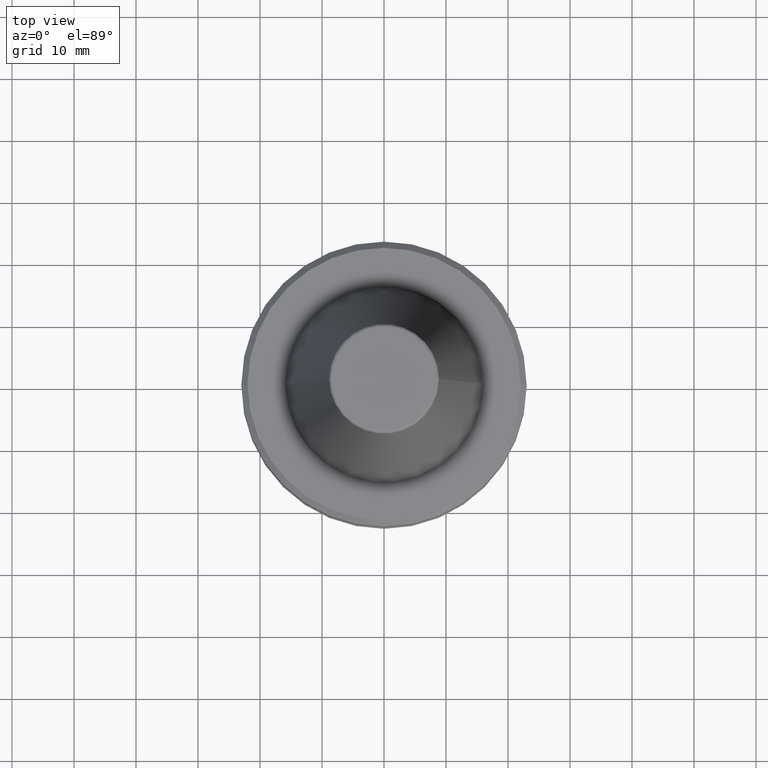
[diagram: clean part render]
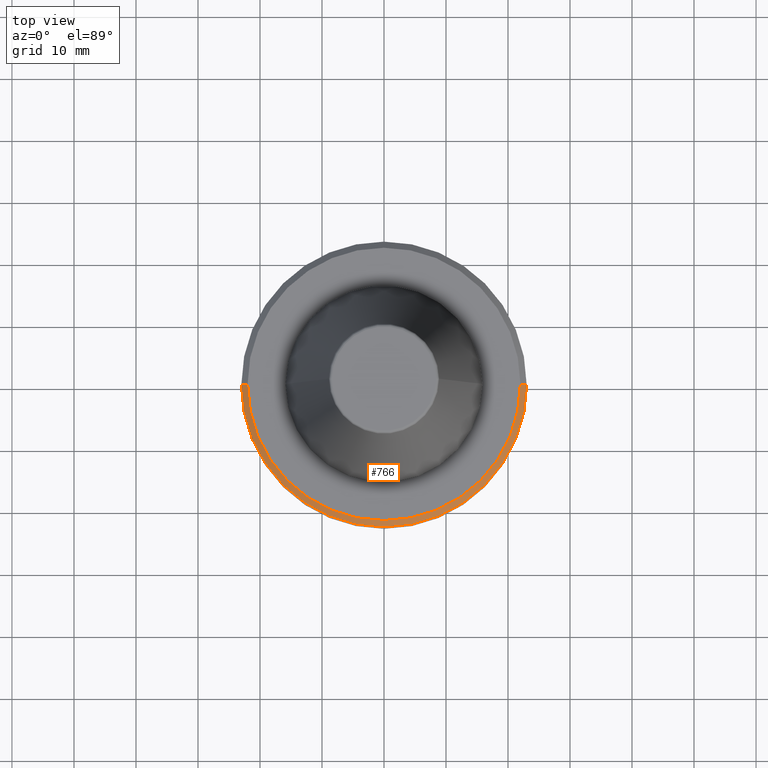
[diagram: same view with one face highlighted and labeled with its STEP entity id]
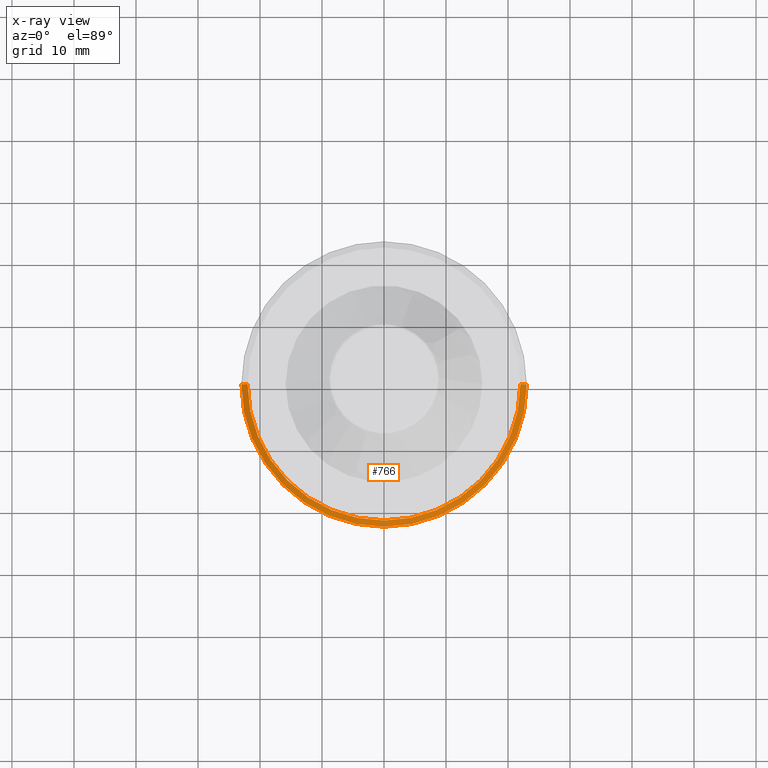
[diagram: x-ray of the same camera — body ghosted, the highlighted face saturated]
A machine part, top view. The second image highlights one B-rep face of the part: STEP entity #766.
The next image is the same camera in x-ray: the body ghosted, the highlighted face saturated — about 0% of this face is hidden behind the body in this view.
In plain terms, the highlighted conical surface has half-angle 45 deg.
Its self-contained STEP definition (entity closure, byte-faithful):
#23 = CARTESIAN_POINT ( 'NONE',  ( -22.00000000000002100, 0.0000000000000000000, -1.999999999999779700 ) ) ;
#30 = DIRECTION ( 'NONE',  ( -0.0000000000000000000, -0.0000000000000000000, 1.000000000000000000 ) ) ;
#70 = VECTOR ( 'NONE', #834, 1000.000000000000000 ) ;
#84 = EDGE_CURVE ( 'NONE', #782, #529, #913, .T. ) ;
#98 = CONICAL_SURFACE ( 'NONE', #590, 23.00000000000002100, 0.7853981633973927700 ) ;
#114 = CARTESIAN_POINT ( 'NONE',  ( -23.00000000000002100, 0.0000000000000000000, -2.999999999999891600 ) ) ;
#127 = EDGE_CURVE ( 'NONE', #529, #608, #496, .T. ) ;
#137 = AXIS2_PLACEMENT_3D ( 'NONE', #538, #30, #632 ) ;
#146 = CARTESIAN_POINT ( 'NONE',  ( 22.00000000000002100, 2.755455298081547100E-015, -1.999999999999779700 ) ) ;
#165 = DIRECTION ( 'NONE',  ( -0.0000000000000000000, -0.0000000000000000000, 1.000000000000000000 ) ) ;
#206 = VERTEX_POINT ( 'NONE', #652 ) ;
#263 = AXIS2_PLACEMENT_3D ( 'NONE', #904, #165, #486 ) ;
#344 = FACE_OUTER_BOUND ( 'NONE', #798, .T. ) ;
#423 = ORIENTED_EDGE ( 'NONE', *, *, #493, .T. ) ;
#486 = DIRECTION ( 'NONE',  ( 1.000000000000000000, 0.0000000000000000000, 0.0000000000000000000 ) ) ;
#493 = EDGE_CURVE ( 'NONE', #782, #206, #532, .T. ) ;
#496 = LINE ( 'NONE', #862, #70 ) ;
#521 = DIRECTION ( 'NONE',  ( 0.0000000000000000000, 0.0000000000000000000, -1.000000000000000000 ) ) ;
#529 = VERTEX_POINT ( 'NONE', #146 ) ;
#532 = LINE ( 'NONE', #114, #714 ) ;
#538 = CARTESIAN_POINT ( 'NONE',  ( 0.0000000000000000000, 0.0000000000000000000, -2.999999999999891600 ) ) ;
#582 = ORIENTED_EDGE ( 'NONE', *, *, #962, .T. ) ;
#590 = AXIS2_PLACEMENT_3D ( 'NONE', #596, #521, #679 ) ;
#596 = CARTESIAN_POINT ( 'NONE',  ( 0.0000000000000000000, 0.0000000000000000000, -2.999999999999891600 ) ) ;
#608 = VERTEX_POINT ( 'NONE', #967 ) ;
#632 = DIRECTION ( 'NONE',  ( 1.000000000000000000, 0.0000000000000000000, 0.0000000000000000000 ) ) ;
#652 = CARTESIAN_POINT ( 'NONE',  ( -23.00000000000002100, 2.816687638038915100E-015, -2.999999999999891600 ) ) ;
#679 = DIRECTION ( 'NONE',  ( -1.000000000000000000, 0.0000000000000000000, 0.0000000000000000000 ) ) ;
#714 = VECTOR ( 'NONE', #745, 1000.000000000000000 ) ;
#727 = ORIENTED_EDGE ( 'NONE', *, *, #127, .F. ) ;
#745 = DIRECTION ( 'NONE',  ( -0.7071067811865081600, 0.0000000000000000000, -0.7071067811865867600 ) ) ;
#751 = ORIENTED_EDGE ( 'NONE', *, *, #84, .F. ) ;
#766 = ADVANCED_FACE ( 'NONE', ( #344 ), #98, .T. ) ;
#782 = VERTEX_POINT ( 'NONE', #23 ) ;
#798 = EDGE_LOOP ( 'NONE', ( #727, #751, #423, #582 ) ) ;
#834 = DIRECTION ( 'NONE',  ( 0.7071067811865081600, 8.659560562354452100E-017, -0.7071067811865867600 ) ) ;
#862 = CARTESIAN_POINT ( 'NONE',  ( 23.00000000000002100, 2.816687638038915100E-015, -2.999999999999891600 ) ) ;
#904 = CARTESIAN_POINT ( 'NONE',  ( 0.0000000000000000000, 0.0000000000000000000, -1.999999999999779700 ) ) ;
#913 = CIRCLE ( 'NONE', #263, 22.00000000000002100 ) ;
#924 = CIRCLE ( 'NONE', #137, 23.00000000000002100 ) ;
#962 = EDGE_CURVE ( 'NONE', #206, #608, #924, .T. ) ;
#967 = CARTESIAN_POINT ( 'NONE',  ( 23.00000000000002100, 0.0000000000000000000, -2.999999999999891600 ) ) ;